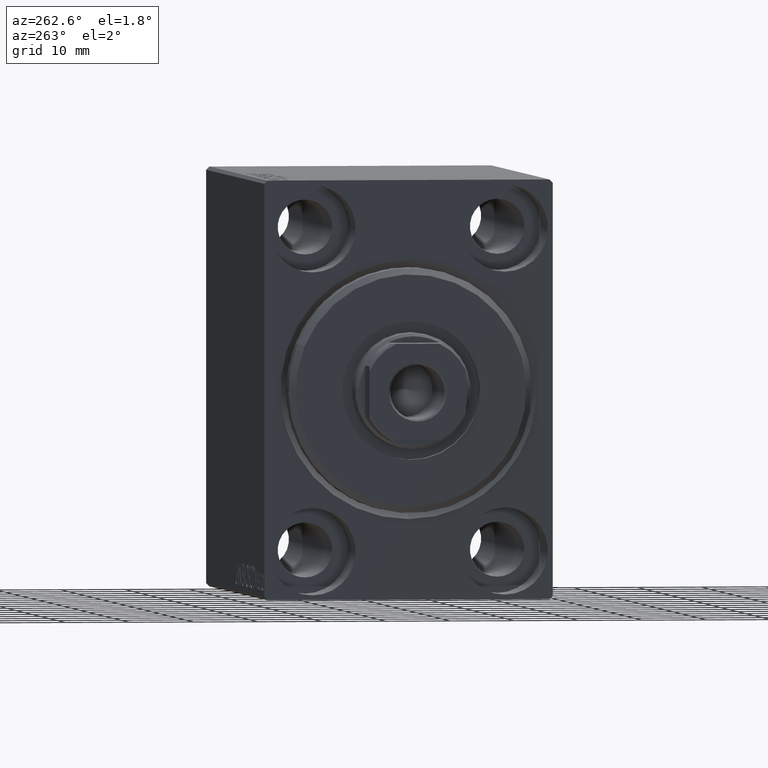
[diagram: clean part render]
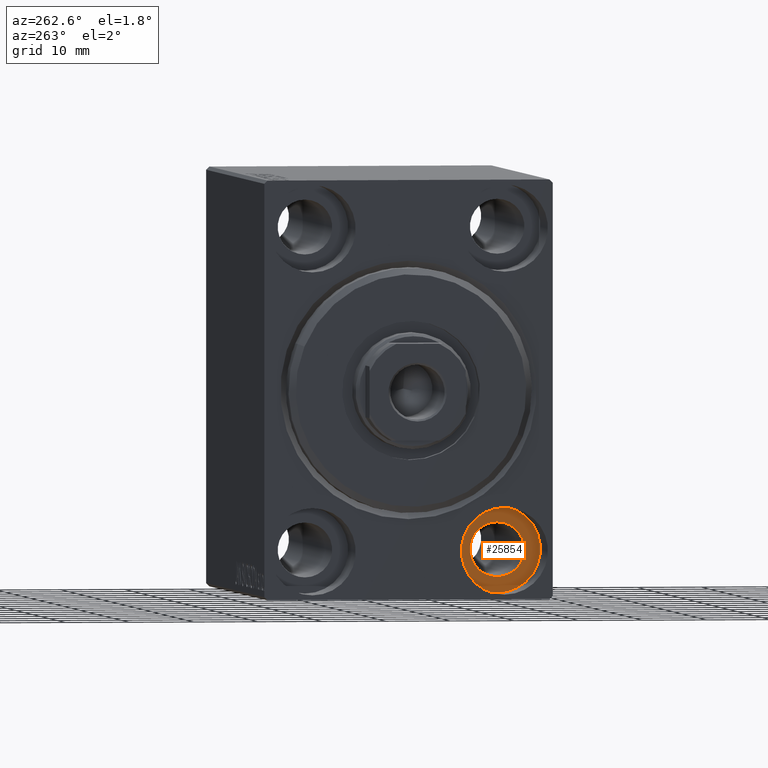
[diagram: same view with one face highlighted and labeled with its STEP entity id]
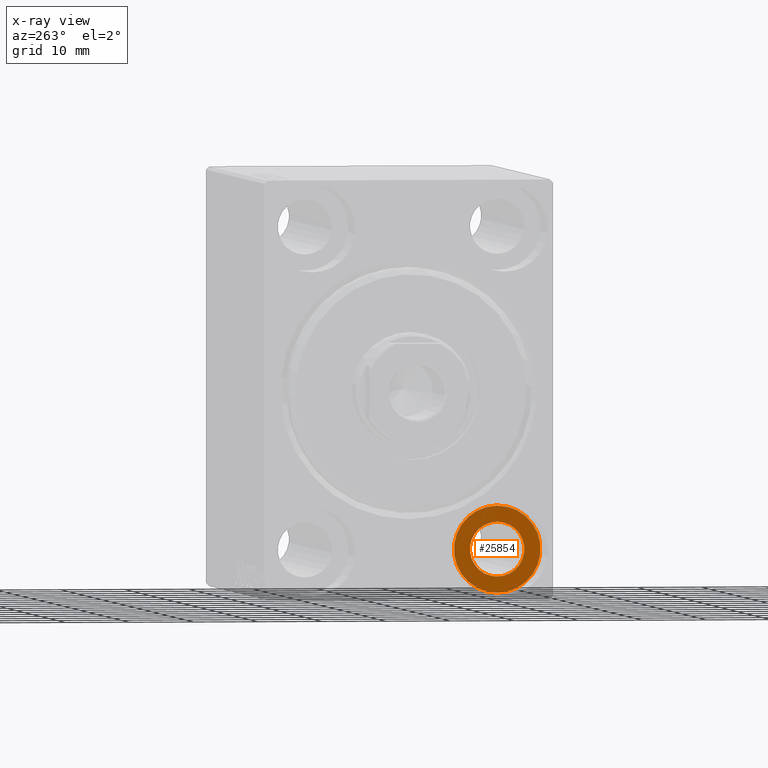
[diagram: x-ray of the same camera — body ghosted, the highlighted face saturated]
A machine part, auxiliary view. The second image highlights one B-rep face of the part: STEP entity #25854.
The next image is the same camera in x-ray: the body ghosted, the highlighted face saturated — about 0% of this face is hidden behind the body in this view.
In plain terms, the highlighted planar face has unit normal (-1, 0, 0).
Its self-contained STEP definition (entity closure, byte-faithful):
#296 = EDGE_CURVE ( 'NONE', #41055, #43889, #40536, .T. ) ;
#1478 = DIRECTION ( 'NONE',  ( 0.000000000000000000, 0.000000000000000000, 1.000000000000000000 ) ) ;
#2453 = DIRECTION ( 'NONE',  ( -1.000000000000000000, 0.000000000000000000, 0.000000000000000000 ) ) ;
#4544 = ORIENTED_EDGE ( 'NONE', *, *, #296, .F. ) ;
#5777 = FACE_OUTER_BOUND ( 'NONE', #5940, .T. ) ;
#5940 = EDGE_LOOP ( 'NONE', ( #29581, #38747 ) ) ;
#7818 = CIRCLE ( 'NONE', #30560, 6.749999999999999112 ) ;
#8235 = CIRCLE ( 'NONE', #8927, 6.749999999999999112 ) ;
#8927 = AXIS2_PLACEMENT_3D ( 'NONE', #21720, #18376, #1478 ) ;
#9432 = CARTESIAN_POINT ( 'NONE',  ( 9.000000000000001776, -15.00000000000000355, -29.25000000000000000 ) ) ;
#11313 = DIRECTION ( 'NONE',  ( -1.000000000000000000, 0.000000000000000000, 0.000000000000000000 ) ) ;
#11838 = AXIS2_PLACEMENT_3D ( 'NONE', #39948, #19701, #29939 ) ;
#12572 = CARTESIAN_POINT ( 'NONE',  ( 9.000000000000001776, -15.00000000000000355, -25.00000000000000000 ) ) ;
#13231 = CARTESIAN_POINT ( 'NONE',  ( 9.000000000000001776, -15.00000000000000355, -20.75000000000000355 ) ) ;
#15995 = VERTEX_POINT ( 'NONE', #28953 ) ;
#16671 = DIRECTION ( 'NONE',  ( -1.000000000000000000, 0.000000000000000000, 0.000000000000000000 ) ) ;
#18376 = DIRECTION ( 'NONE',  ( -1.000000000000000000, 0.000000000000000000, 0.000000000000000000 ) ) ;
#18630 = ORIENTED_EDGE ( 'NONE', *, *, #22977, .F. ) ;
#19355 = PLANE ( 'NONE',  #39614 ) ;
#19701 = DIRECTION ( 'NONE',  ( -1.000000000000000000, 0.000000000000000000, 0.000000000000000000 ) ) ;
#20814 = EDGE_CURVE ( 'NONE', #22282, #15995, #8235, .T. ) ;
#21720 = CARTESIAN_POINT ( 'NONE',  ( 9.000000000000000000, -15.00000000000000355, -25.00000000000000000 ) ) ;
#22282 = VERTEX_POINT ( 'NONE', #25137 ) ;
#22748 = AXIS2_PLACEMENT_3D ( 'NONE', #12572, #11313, #42845 ) ;
#22977 = EDGE_CURVE ( 'NONE', #43889, #41055, #31050, .T. ) ;
#23579 = DIRECTION ( 'NONE',  ( 0.000000000000000000, 0.000000000000000000, 1.000000000000000000 ) ) ;
#25137 = CARTESIAN_POINT ( 'NONE',  ( 9.000000000000000000, -15.00000000000000355, -18.25000000000000355 ) ) ;
#25854 = ADVANCED_FACE ( 'NONE', ( #36264, #5777 ), #19355, .T. ) ;
#28953 = CARTESIAN_POINT ( 'NONE',  ( 9.000000000000000000, -15.00000000000000355, -31.75000000000000000 ) ) ;
#29433 = EDGE_LOOP ( 'NONE', ( #4544, #18630 ) ) ;
#29581 = ORIENTED_EDGE ( 'NONE', *, *, #20814, .T. ) ;
#29939 = DIRECTION ( 'NONE',  ( 0.000000000000000000, 0.000000000000000000, 1.000000000000000000 ) ) ;
#30560 = AXIS2_PLACEMENT_3D ( 'NONE', #37363, #16671, #39814 ) ;
#31050 = CIRCLE ( 'NONE', #11838, 4.249999999999996447 ) ;
#32947 = CARTESIAN_POINT ( 'NONE',  ( 9.000000000000000000, 0.000000000000000000, 0.000000000000000000 ) ) ;
#36264 = FACE_BOUND ( 'NONE', #29433, .T. ) ;
#37363 = CARTESIAN_POINT ( 'NONE',  ( 9.000000000000000000, -15.00000000000000355, -25.00000000000000000 ) ) ;
#37686 = EDGE_CURVE ( 'NONE', #15995, #22282, #7818, .T. ) ;
#38747 = ORIENTED_EDGE ( 'NONE', *, *, #37686, .T. ) ;
#39614 = AXIS2_PLACEMENT_3D ( 'NONE', #32947, #2453, #23579 ) ;
#39814 = DIRECTION ( 'NONE',  ( 0.000000000000000000, 0.000000000000000000, 1.000000000000000000 ) ) ;
#39948 = CARTESIAN_POINT ( 'NONE',  ( 9.000000000000001776, -15.00000000000000355, -25.00000000000000000 ) ) ;
#40536 = CIRCLE ( 'NONE', #22748, 4.249999999999996447 ) ;
#41055 = VERTEX_POINT ( 'NONE', #13231 ) ;
#42845 = DIRECTION ( 'NONE',  ( 0.000000000000000000, 0.000000000000000000, 1.000000000000000000 ) ) ;
#43889 = VERTEX_POINT ( 'NONE', #9432 ) ;